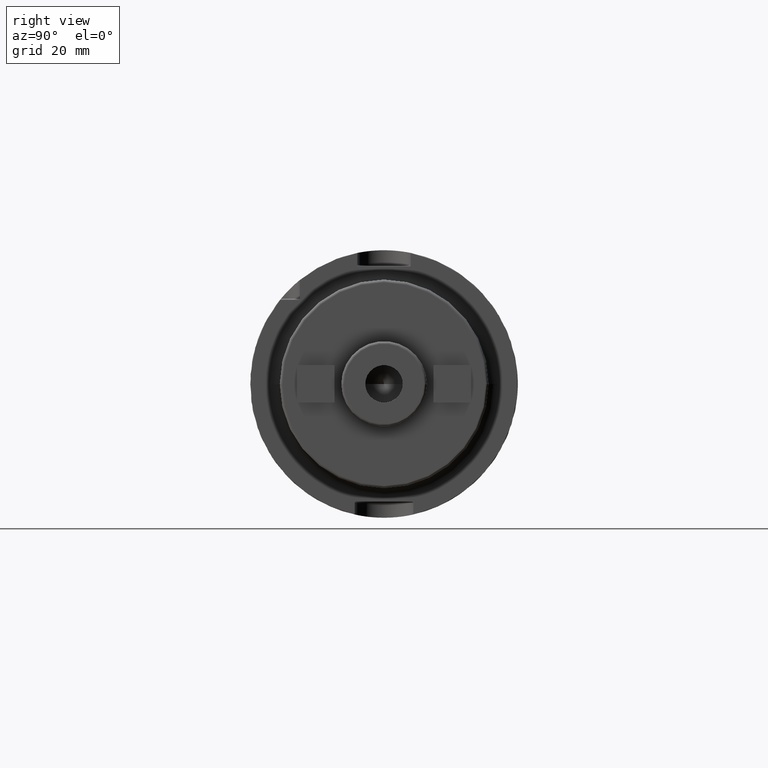
[diagram: clean part render]
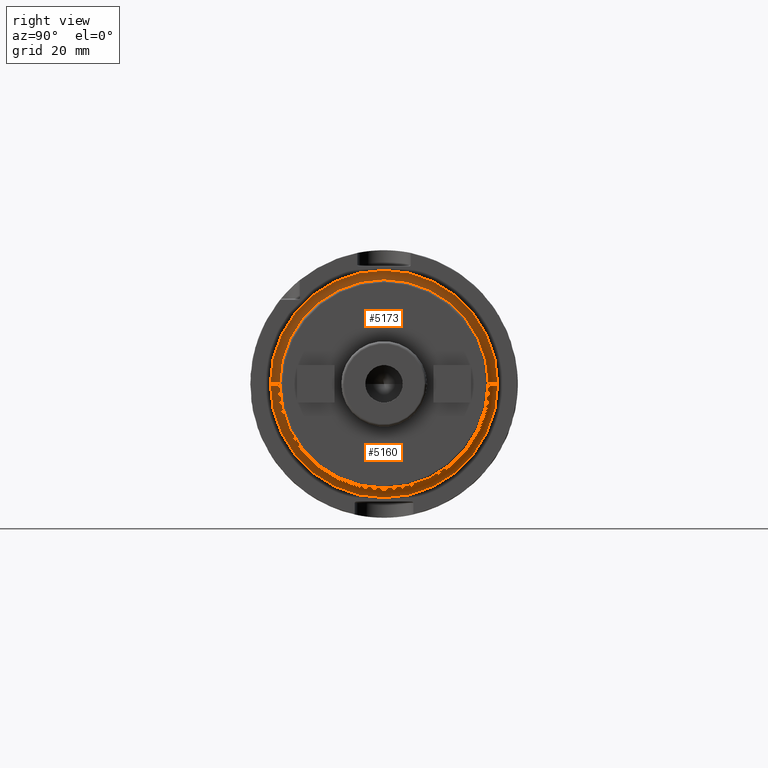
[diagram: same view with one multi-face feature highlighted, each face labeled with its STEP entity id]
A machine part, right view. The highlighted faces form ONE feature: a constant-radius fillet chain: 2 tangent blend faces with common blend radius 3.5 mm. The faces share edges in the B-rep.
Their STEP definitions:
[1] entity #5173 (Torus):
#1096=CARTESIAN_POINT('',(2.9E1,0.E0,0.E0));
#1097=DIRECTION('',(1.E0,0.E0,0.E0));
#1098=DIRECTION('',(0.E0,1.E0,0.E0));
#1099=AXIS2_PLACEMENT_3D('',#1096,#1097,#1098);
#1810=CARTESIAN_POINT('',(3.25E1,-4.25E1,-4.173050793810E-14));
#1811=DIRECTION('',(0.E0,0.E0,-1.E0));
#1812=DIRECTION('',(-1.E0,0.E0,0.E0));
#1813=AXIS2_PLACEMENT_3D('',#1810,#1811,#1812);
#1815=CARTESIAN_POINT('',(3.25E1,4.25E1,1.805500193797E-14));
#1816=DIRECTION('',(0.E0,0.E0,1.E0));
#1817=DIRECTION('',(-1.E0,0.E0,0.E0));
#1818=AXIS2_PLACEMENT_3D('',#1815,#1816,#1817);
#1825=CARTESIAN_POINT('',(3.25E1,0.E0,0.E0));
#1826=DIRECTION('',(1.E0,0.E0,0.E0));
#1827=DIRECTION('',(0.E0,1.E0,0.E0));
#1828=AXIS2_PLACEMENT_3D('',#1825,#1826,#1827);
#3263=CARTESIAN_POINT('',(2.9E1,-4.25E1,-4.815708063001E-14));
#3264=CARTESIAN_POINT('',(2.9E1,4.25E1,2.407854031500E-14));
#3265=VERTEX_POINT('',#3263);
#3266=VERTEX_POINT('',#3264);
#3267=CARTESIAN_POINT('',(3.25E1,-3.9E1,0.E0));
#3268=CARTESIAN_POINT('',(3.25E1,3.9E1,0.E0));
#3269=VERTEX_POINT('',#3267);
#3270=VERTEX_POINT('',#3268);
#5161=CARTESIAN_POINT('',(3.25E1,0.E0,0.E0));
#5162=DIRECTION('',(1.E0,0.E0,0.E0));
#5163=DIRECTION('',(0.E0,9.999980568220E-1,-1.971383338467E-3));
#5164=AXIS2_PLACEMENT_3D('',#5161,#5162,#5163);
#5165=TOROIDAL_SURFACE('',#5164,4.25E1,3.5E0);
#5166=ORIENTED_EDGE('',*,*,#4428,.F.);
#5167=ORIENTED_EDGE('',*,*,#5156,.T.);
#5169=ORIENTED_EDGE('',*,*,#5168,.T.);
#5170=ORIENTED_EDGE('',*,*,#5152,.F.);
#5171=EDGE_LOOP('',(#5166,#5167,#5169,#5170));
#5172=FACE_OUTER_BOUND('',#5171,.F.);
#5173=ADVANCED_FACE('',(#5172),#5165,.F.);
#1100=CIRCLE('',#1099,4.25E1);
#1814=CIRCLE('',#1813,3.5E0);
#1819=CIRCLE('',#1818,3.5E0);
#1829=CIRCLE('',#1828,3.9E1);
#4428=EDGE_CURVE('',#3266,#3265,#1100,.T.);
#5152=EDGE_CURVE('',#3265,#3269,#1814,.T.);
#5156=EDGE_CURVE('',#3266,#3270,#1819,.T.);
#5168=EDGE_CURVE('',#3270,#3269,#1829,.T.);
[2] entity #5160 (Torus):
#1091=CARTESIAN_POINT('',(2.9E1,0.E0,0.E0));
#1092=DIRECTION('',(1.E0,0.E0,0.E0));
#1093=DIRECTION('',(0.E0,-1.E0,0.E0));
#1094=AXIS2_PLACEMENT_3D('',#1091,#1092,#1093);
#1810=CARTESIAN_POINT('',(3.25E1,-4.25E1,-4.173050793810E-14));
#1811=DIRECTION('',(0.E0,0.E0,-1.E0));
#1812=DIRECTION('',(-1.E0,0.E0,0.E0));
#1813=AXIS2_PLACEMENT_3D('',#1810,#1811,#1812);
#1815=CARTESIAN_POINT('',(3.25E1,4.25E1,1.805500193797E-14));
#1816=DIRECTION('',(0.E0,0.E0,1.E0));
#1817=DIRECTION('',(-1.E0,0.E0,0.E0));
#1818=AXIS2_PLACEMENT_3D('',#1815,#1816,#1817);
#1849=CARTESIAN_POINT('',(3.25E1,0.E0,0.E0));
#1850=DIRECTION('',(1.E0,0.E0,0.E0));
#1851=DIRECTION('',(0.E0,-1.E0,0.E0));
#1852=AXIS2_PLACEMENT_3D('',#1849,#1850,#1851);
#3263=CARTESIAN_POINT('',(2.9E1,-4.25E1,-4.815708063001E-14));
#3264=CARTESIAN_POINT('',(2.9E1,4.25E1,2.407854031500E-14));
#3265=VERTEX_POINT('',#3263);
#3266=VERTEX_POINT('',#3264);
#3267=CARTESIAN_POINT('',(3.25E1,-3.9E1,0.E0));
#3268=CARTESIAN_POINT('',(3.25E1,3.9E1,0.E0));
#3269=VERTEX_POINT('',#3267);
#3270=VERTEX_POINT('',#3268);
#5146=CARTESIAN_POINT('',(3.25E1,0.E0,0.E0));
#5147=DIRECTION('',(1.E0,0.E0,0.E0));
#5148=DIRECTION('',(0.E0,-9.999980568220E-1,1.971383338467E-3));
#5149=AXIS2_PLACEMENT_3D('',#5146,#5147,#5148);
#5150=TOROIDAL_SURFACE('',#5149,4.25E1,3.5E0);
#5151=ORIENTED_EDGE('',*,*,#4426,.F.);
#5153=ORIENTED_EDGE('',*,*,#5152,.T.);
#5155=ORIENTED_EDGE('',*,*,#5154,.T.);
#5157=ORIENTED_EDGE('',*,*,#5156,.F.);
#5158=EDGE_LOOP('',(#5151,#5153,#5155,#5157));
#5159=FACE_OUTER_BOUND('',#5158,.F.);
#5160=ADVANCED_FACE('',(#5159),#5150,.F.);
#1095=CIRCLE('',#1094,4.25E1);
#1814=CIRCLE('',#1813,3.5E0);
#1819=CIRCLE('',#1818,3.5E0);
#1853=CIRCLE('',#1852,3.9E1);
#4426=EDGE_CURVE('',#3265,#3266,#1095,.T.);
#5152=EDGE_CURVE('',#3265,#3269,#1814,.T.);
#5154=EDGE_CURVE('',#3269,#3270,#1853,.T.);
#5156=EDGE_CURVE('',#3266,#3270,#1819,.T.);